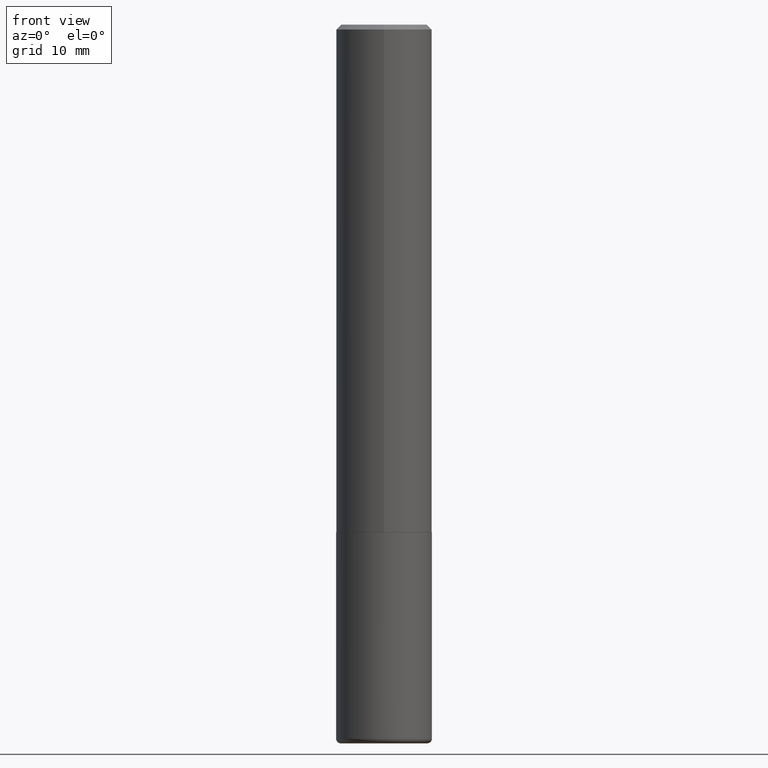
[diagram: clean part render]
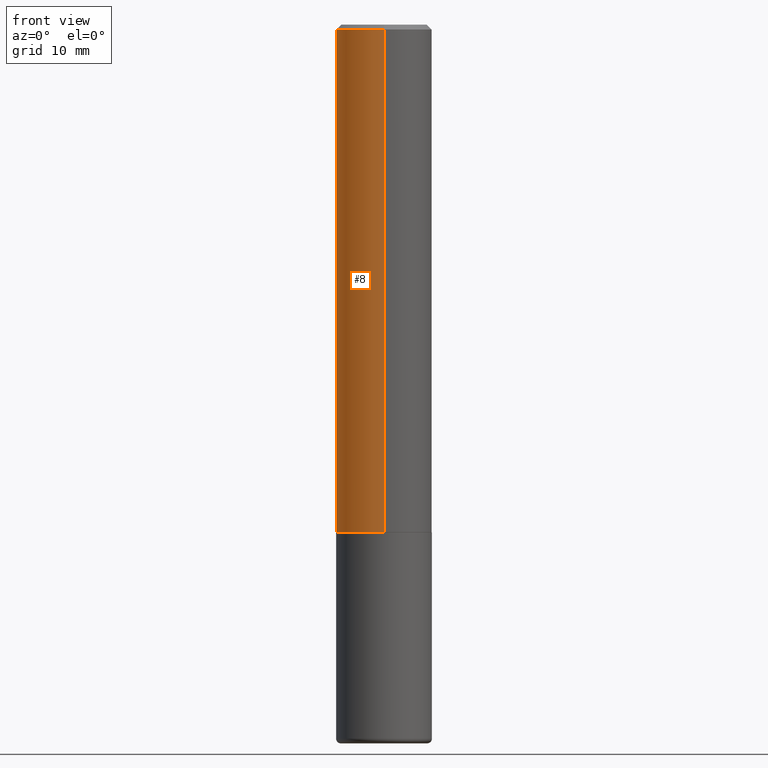
[diagram: same view with one face highlighted and labeled with its STEP entity id]
A machine part, front view. The second image highlights one B-rep face of the part: STEP entity #8.
In plain terms, the highlighted cylindrical surface (partial cylindrical patch) has radius 5 mm, axis along (-0, 0, 1).
Its self-contained STEP definition (entity closure, byte-faithful):
#2 = CARTESIAN_POINT ( 'NONE',  ( -1.350489030861325429E-15, -0.1968500000000000805, -0.01999999999999935510 ) ) ;
#8 = ADVANCED_FACE ( 'NONE', ( #121 ), #314, .T. ) ;
#10 = DIRECTION ( 'NONE',  ( -2.446539280306379378E-29, 3.489948358973923236E-15, 1.000000000000000000 ) ) ;
#30 = DIRECTION ( 'NONE',  ( -6.982962677686265922E-15, -1.000000000000000000, 4.163344669033669323E-15 ) ) ;
#42 = DIRECTION ( 'NONE',  ( -6.982962677686265922E-15, -1.000000000000000000, 3.489948358973923631E-15 ) ) ;
#47 = CARTESIAN_POINT ( 'NONE',  ( 0.000000000000000000, 0.000000000000000000, 0.000000000000000000 ) ) ;
#66 = EDGE_CURVE ( 'NONE', #135, #358, #305, .T. ) ;
#105 = VECTOR ( 'NONE', #10, 39.37007874015748143 ) ;
#109 = CARTESIAN_POINT ( 'NONE',  ( 1.398703375343784412E-15, 0.1968499999999930583, -2.085700000000000554 ) ) ;
#121 = FACE_OUTER_BOUND ( 'NONE', #413, .T. ) ;
#135 = VERTEX_POINT ( 'NONE', #220 ) ;
#137 = DIRECTION ( 'NONE',  ( -2.446539280306379098E-29, 3.489948358973923236E-15, 1.000000000000000000 ) ) ;
#156 = VECTOR ( 'NONE', #250, 39.37007874015748143 ) ;
#162 = CIRCLE ( 'NONE', #240, 0.1968500000000000250 ) ;
#166 = ORIENTED_EDGE ( 'NONE', *, *, #66, .T. ) ;
#189 = AXIS2_PLACEMENT_3D ( 'NONE', #412, #325, #30 ) ;
#192 = CARTESIAN_POINT ( 'NONE',  ( 1.374596203102542003E-15, 0.1968499999999999417, -0.02000000000000072900 ) ) ;
#205 = DIRECTION ( 'NONE',  ( -2.446539280306379098E-29, 3.489948358973923236E-15, 1.000000000000000000 ) ) ;
#212 = CARTESIAN_POINT ( 'NONE',  ( -1.374596203102542397E-15, -0.1968500000000001360, 6.869963344640173229E-16 ) ) ;
#220 = CARTESIAN_POINT ( 'NONE',  ( -1.374596203102492502E-15, -0.1968500000000075467, -2.085699999999999221 ) ) ;
#222 = ORIENTED_EDGE ( 'NONE', *, *, #373, .F. ) ;
#225 = ORIENTED_EDGE ( 'NONE', *, *, #276, .T. ) ;
#239 = AXIS2_PLACEMENT_3D ( 'NONE', #47, #205, #42 ) ;
#240 = AXIS2_PLACEMENT_3D ( 'NONE', #270, #137, #333 ) ;
#250 = DIRECTION ( 'NONE',  ( -2.446539280306379378E-29, 3.489948358973923236E-15, 1.000000000000000000 ) ) ;
#270 = CARTESIAN_POINT ( 'NONE',  ( 4.893078560612768951E-31, -6.979896717947859982E-17, -0.02000000000000004205 ) ) ;
#275 = CIRCLE ( 'NONE', #189, 0.1968500000000002748 ) ;
#276 = EDGE_CURVE ( 'NONE', #329, #135, #275, .T. ) ;
#287 = LINE ( 'NONE', #409, #156 ) ;
#294 = EDGE_CURVE ( 'NONE', #329, #296, #287, .T. ) ;
#296 = VERTEX_POINT ( 'NONE', #192 ) ;
#305 = LINE ( 'NONE', #212, #105 ) ;
#314 = CYLINDRICAL_SURFACE ( 'NONE', #239, 0.1968500000000001360 ) ;
#325 = DIRECTION ( 'NONE',  ( -2.446539280306379098E-29, 3.489948358973923236E-15, 1.000000000000000000 ) ) ;
#326 = ORIENTED_EDGE ( 'NONE', *, *, #294, .F. ) ;
#329 = VERTEX_POINT ( 'NONE', #109 ) ;
#333 = DIRECTION ( 'NONE',  ( -6.982962677686265133E-15, -1.000000000000000000, 3.491137977679279424E-15 ) ) ;
#358 = VERTEX_POINT ( 'NONE', #2 ) ;
#373 = EDGE_CURVE ( 'NONE', #296, #358, #162, .T. ) ;
#409 = CARTESIAN_POINT ( 'NONE',  ( 1.398703375343757985E-15, 0.1968500000000001360, -6.869963344640173229E-16 ) ) ;
#412 = CARTESIAN_POINT ( 'NONE',  ( 5.102746976935014410E-29, -7.278985292311911140E-15, -2.085699999999999665 ) ) ;
#413 = EDGE_LOOP ( 'NONE', ( #326, #225, #166, #222 ) ) ;